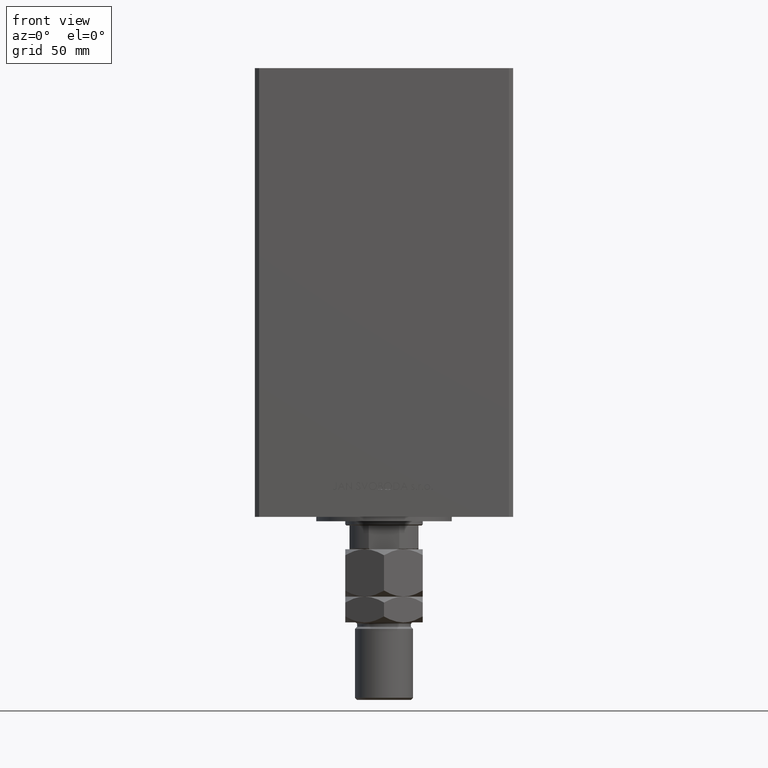
[diagram: clean part render]
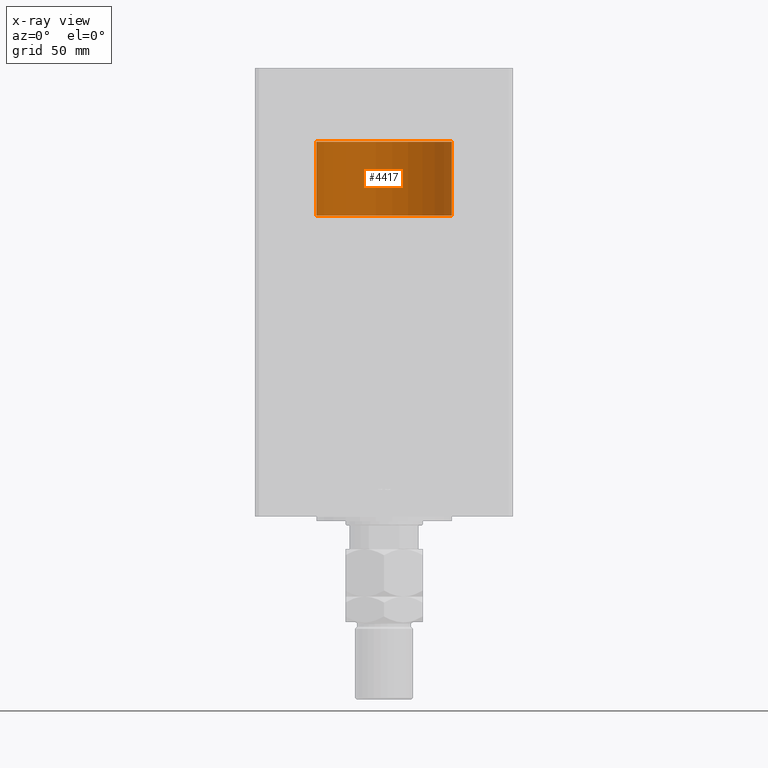
[diagram: x-ray — body ghosted, one internal face saturated and labeled with its STEP entity id]
A machine part, front view, then the same camera in x-ray: the body is ghosted and one INTERNAL B-rep face — a face not visible from any outside direction — is saturated and labeled: STEP entity #4417.
In plain terms, the highlighted cylindrical surface (partial cylindrical patch) has radius 31.5 mm, axis along (0, -0, 1).
Its self-contained STEP definition (entity closure, byte-faithful):
#266 = LINE ( 'NONE', #15821, #49565 ) ;
#2383 = FACE_OUTER_BOUND ( 'NONE', #40658, .T. ) ;
#4417 = ADVANCED_FACE ( 'NONE', ( #2383 ), #36386, .T. ) ;
#4574 = CARTESIAN_POINT ( 'NONE',  ( 31.50000000000000000, 3.857637417314162689E-15, 0.000000000000000000 ) ) ;
#6527 = EDGE_CURVE ( 'NONE', #22162, #26417, #266, .T. ) ;
#6767 = AXIS2_PLACEMENT_3D ( 'NONE', #41932, #12822, #33779 ) ;
#10378 = AXIS2_PLACEMENT_3D ( 'NONE', #35861, #15731, #52454 ) ;
#10929 = VECTOR ( 'NONE', #36009, 1000.000000000000000 ) ;
#12678 = CARTESIAN_POINT ( 'NONE',  ( -31.50000000000000000, 0.000000000000000000, 0.000000000000000000 ) ) ;
#12822 = DIRECTION ( 'NONE',  ( 0.000000000000000000, 0.000000000000000000, 1.000000000000000000 ) ) ;
#13246 = CARTESIAN_POINT ( 'NONE',  ( -31.50000000000000000, 0.000000000000000000, 34.25000000000000000 ) ) ;
#14527 = CARTESIAN_POINT ( 'NONE',  ( -31.50000000000000000, 0.000000000000000000, 34.25000000000000000 ) ) ;
#15689 = AXIS2_PLACEMENT_3D ( 'NONE', #53623, #45196, #44406 ) ;
#15731 = DIRECTION ( 'NONE',  ( -0.000000000000000000, -0.000000000000000000, -1.000000000000000000 ) ) ;
#15821 = CARTESIAN_POINT ( 'NONE',  ( 31.50000000000000000, 3.857637417314162689E-15, 34.25000000000000000 ) ) ;
#16076 = DIRECTION ( 'NONE',  ( -0.000000000000000000, -0.000000000000000000, -1.000000000000000000 ) ) ;
#19459 = ORIENTED_EDGE ( 'NONE', *, *, #52808, .T. ) ;
#20542 = CARTESIAN_POINT ( 'NONE',  ( 31.50000000000000000, 3.857637417314162689E-15, 34.25000000000000000 ) ) ;
#21761 = VERTEX_POINT ( 'NONE', #13246 ) ;
#22162 = VERTEX_POINT ( 'NONE', #20542 ) ;
#25082 = ORIENTED_EDGE ( 'NONE', *, *, #32820, .F. ) ;
#25833 = EDGE_CURVE ( 'NONE', #21761, #44592, #27041, .T. ) ;
#26417 = VERTEX_POINT ( 'NONE', #4574 ) ;
#27041 = LINE ( 'NONE', #14527, #10929 ) ;
#27597 = CIRCLE ( 'NONE', #6767, 31.50000000000000000 ) ;
#27837 = ORIENTED_EDGE ( 'NONE', *, *, #6527, .T. ) ;
#29746 = ORIENTED_EDGE ( 'NONE', *, *, #25833, .F. ) ;
#32195 = CIRCLE ( 'NONE', #15689, 31.50000000000000000 ) ;
#32820 = EDGE_CURVE ( 'NONE', #22162, #21761, #27597, .T. ) ;
#33779 = DIRECTION ( 'NONE',  ( 1.000000000000000000, 0.000000000000000000, 0.000000000000000000 ) ) ;
#35861 = CARTESIAN_POINT ( 'NONE',  ( 0.000000000000000000, 0.000000000000000000, 34.25000000000000000 ) ) ;
#36009 = DIRECTION ( 'NONE',  ( -0.000000000000000000, -0.000000000000000000, -1.000000000000000000 ) ) ;
#36386 = CYLINDRICAL_SURFACE ( 'NONE', #10378, 31.50000000000000000 ) ;
#40658 = EDGE_LOOP ( 'NONE', ( #25082, #27837, #19459, #29746 ) ) ;
#41932 = CARTESIAN_POINT ( 'NONE',  ( 0.000000000000000000, 0.000000000000000000, 34.25000000000000000 ) ) ;
#44406 = DIRECTION ( 'NONE',  ( 1.000000000000000000, 0.000000000000000000, 0.000000000000000000 ) ) ;
#44592 = VERTEX_POINT ( 'NONE', #12678 ) ;
#45196 = DIRECTION ( 'NONE',  ( 0.000000000000000000, 0.000000000000000000, 1.000000000000000000 ) ) ;
#49565 = VECTOR ( 'NONE', #16076, 1000.000000000000000 ) ;
#52454 = DIRECTION ( 'NONE',  ( -1.000000000000000000, 0.000000000000000000, 0.000000000000000000 ) ) ;
#52808 = EDGE_CURVE ( 'NONE', #26417, #44592, #32195, .T. ) ;
#53623 = CARTESIAN_POINT ( 'NONE',  ( 0.000000000000000000, 0.000000000000000000, 0.000000000000000000 ) ) ;